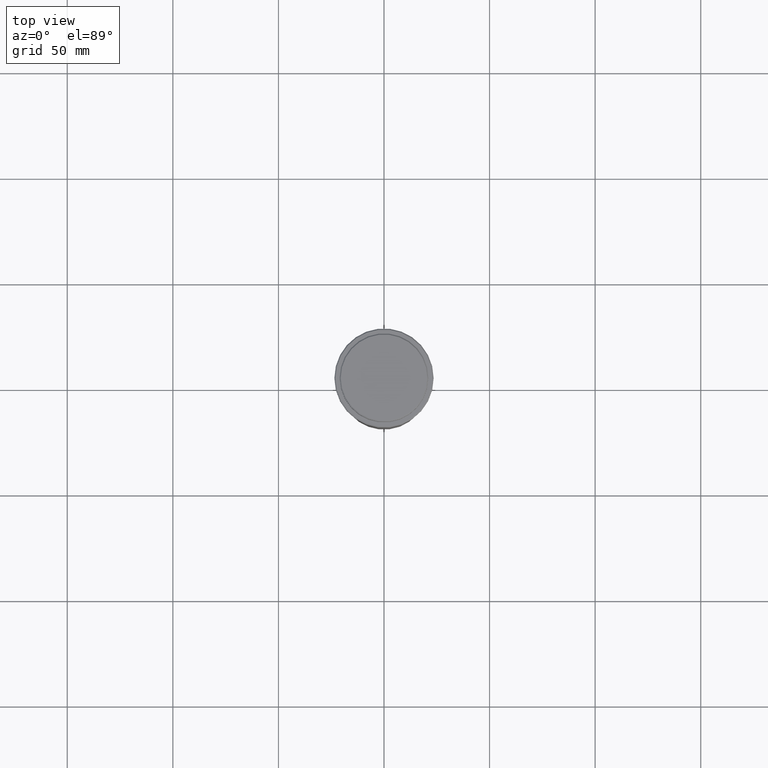
[diagram: clean part render]
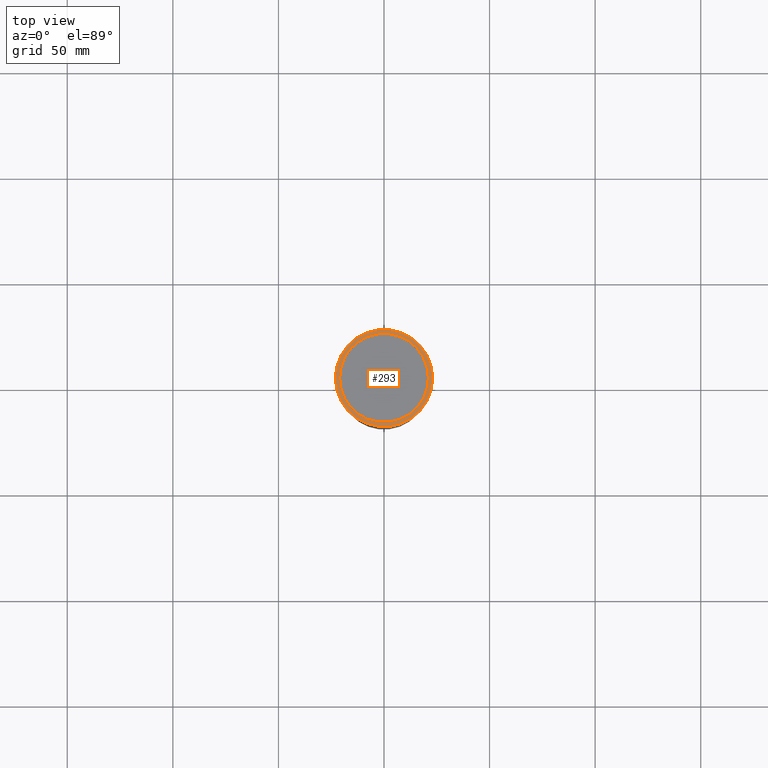
[diagram: same view with one face highlighted and labeled with its STEP entity id]
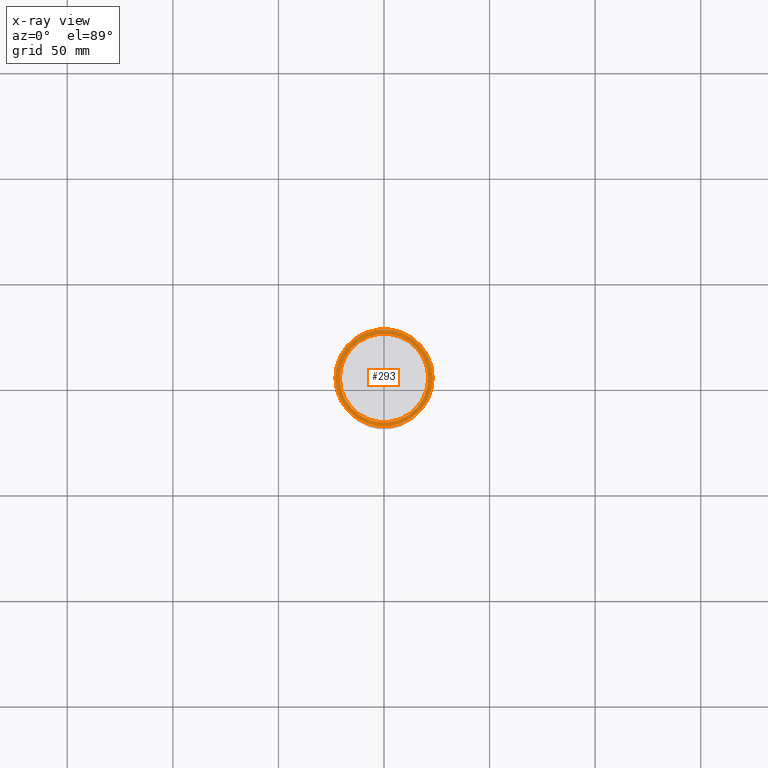
[diagram: x-ray of the same camera — body ghosted, the highlighted face saturated]
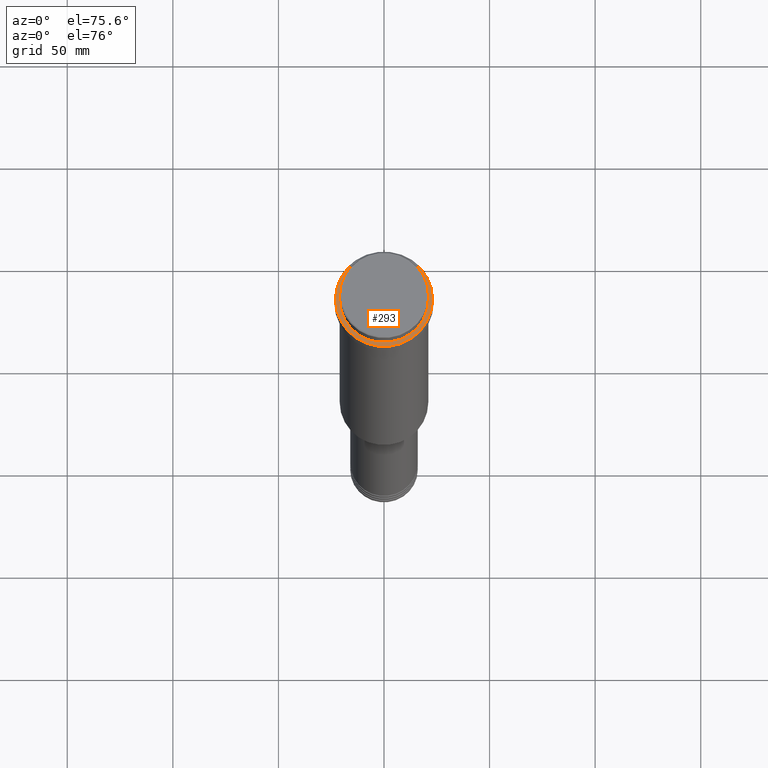
[diagram: same view with one face highlighted and labeled with its STEP entity id]
A machine part, top view. The second image highlights one B-rep face of the part: STEP entity #293.
The next image is the same camera in x-ray: the body ghosted, the highlighted face saturated — about 0% of this face is hidden behind the body in this view.
A second angle (auxiliary view) of the same face is appended — the face is thin or edge-on in the first view.
In plain terms, the highlighted planar face has unit normal (0, -0, 1).
Its self-contained STEP definition (entity closure, byte-faithful):
#80 = AXIS2_PLACEMENT_3D ( 'NONE', #683, #759, #901 ) ;
#88 = CIRCLE ( 'NONE', #314, 23.00000000000002487 ) ;
#100 = EDGE_CURVE ( 'NONE', #1108, #798, #434, .T. ) ;
#102 = EDGE_LOOP ( 'NONE', ( #783, #1228 ) ) ;
#117 = CARTESIAN_POINT ( 'NONE',  ( 0.000000000000000000, 0.000000000000000000, -9.000000000000001776 ) ) ;
#173 = AXIS2_PLACEMENT_3D ( 'NONE', #897, #577, #1012 ) ;
#180 = DIRECTION ( 'NONE',  ( 0.000000000000000000, 0.000000000000000000, -1.000000000000000000 ) ) ;
#196 = CARTESIAN_POINT ( 'NONE',  ( 0.000000000000000000, 20.49999999999999645, -9.000000000000001776 ) ) ;
#270 = ORIENTED_EDGE ( 'NONE', *, *, #100, .T. ) ;
#276 = VERTEX_POINT ( 'NONE', #1288 ) ;
#293 = ADVANCED_FACE ( 'NONE', ( #1278, #308 ), #1161, .T. ) ;
#308 = FACE_BOUND ( 'NONE', #1017, .T. ) ;
#314 = AXIS2_PLACEMENT_3D ( 'NONE', #117, #747, #969 ) ;
#319 = VERTEX_POINT ( 'NONE', #557 ) ;
#434 = CIRCLE ( 'NONE', #80, 20.99999999999999289 ) ;
#518 = ORIENTED_EDGE ( 'NONE', *, *, #1199, .T. ) ;
#557 = CARTESIAN_POINT ( 'NONE',  ( -23.00000000000002487, 0.000000000000000000, -9.000000000000001776 ) ) ;
#577 = DIRECTION ( 'NONE',  ( -0.000000000000000000, -0.000000000000000000, 1.000000000000000000 ) ) ;
#627 = DIRECTION ( 'NONE',  ( 0.000000000000000000, -0.000000000000000000, 1.000000000000000000 ) ) ;
#646 = CARTESIAN_POINT ( 'NONE',  ( 20.99999999999999289, 0.000000000000000000, -9.000000000000001776 ) ) ;
#683 = CARTESIAN_POINT ( 'NONE',  ( 0.000000000000000000, 0.000000000000000000, -9.000000000000001776 ) ) ;
#747 = DIRECTION ( 'NONE',  ( -0.000000000000000000, -0.000000000000000000, 1.000000000000000000 ) ) ;
#759 = DIRECTION ( 'NONE',  ( 0.000000000000000000, 0.000000000000000000, -1.000000000000000000 ) ) ;
#783 = ORIENTED_EDGE ( 'NONE', *, *, #1030, .T. ) ;
#794 = AXIS2_PLACEMENT_3D ( 'NONE', #1259, #180, #843 ) ;
#798 = VERTEX_POINT ( 'NONE', #646 ) ;
#811 = CIRCLE ( 'NONE', #794, 20.99999999999999289 ) ;
#843 = DIRECTION ( 'NONE',  ( 1.000000000000000000, 0.000000000000000000, 0.000000000000000000 ) ) ;
#897 = CARTESIAN_POINT ( 'NONE',  ( 0.000000000000000000, 0.000000000000000000, -9.000000000000001776 ) ) ;
#901 = DIRECTION ( 'NONE',  ( 1.000000000000000000, 0.000000000000000000, 0.000000000000000000 ) ) ;
#914 = AXIS2_PLACEMENT_3D ( 'NONE', #196, #627, #1054 ) ;
#969 = DIRECTION ( 'NONE',  ( 1.000000000000000000, 0.000000000000000000, 0.000000000000000000 ) ) ;
#983 = EDGE_CURVE ( 'NONE', #276, #319, #1210, .T. ) ;
#1012 = DIRECTION ( 'NONE',  ( 1.000000000000000000, 0.000000000000000000, 0.000000000000000000 ) ) ;
#1017 = EDGE_LOOP ( 'NONE', ( #518, #270 ) ) ;
#1030 = EDGE_CURVE ( 'NONE', #319, #276, #88, .T. ) ;
#1054 = DIRECTION ( 'NONE',  ( 1.000000000000000000, 0.000000000000000000, 0.000000000000000000 ) ) ;
#1108 = VERTEX_POINT ( 'NONE', #1358 ) ;
#1161 = PLANE ( 'NONE',  #914 ) ;
#1199 = EDGE_CURVE ( 'NONE', #798, #1108, #811, .T. ) ;
#1210 = CIRCLE ( 'NONE', #173, 23.00000000000002487 ) ;
#1228 = ORIENTED_EDGE ( 'NONE', *, *, #983, .T. ) ;
#1259 = CARTESIAN_POINT ( 'NONE',  ( 0.000000000000000000, 0.000000000000000000, -9.000000000000001776 ) ) ;
#1278 = FACE_OUTER_BOUND ( 'NONE', #102, .T. ) ;
#1288 = CARTESIAN_POINT ( 'NONE',  ( 23.00000000000002487, 2.847303808017597717E-15, -9.000000000000001776 ) ) ;
#1358 = CARTESIAN_POINT ( 'NONE',  ( -20.99999999999999289, 2.571758278209440872E-15, -9.000000000000001776 ) ) ;